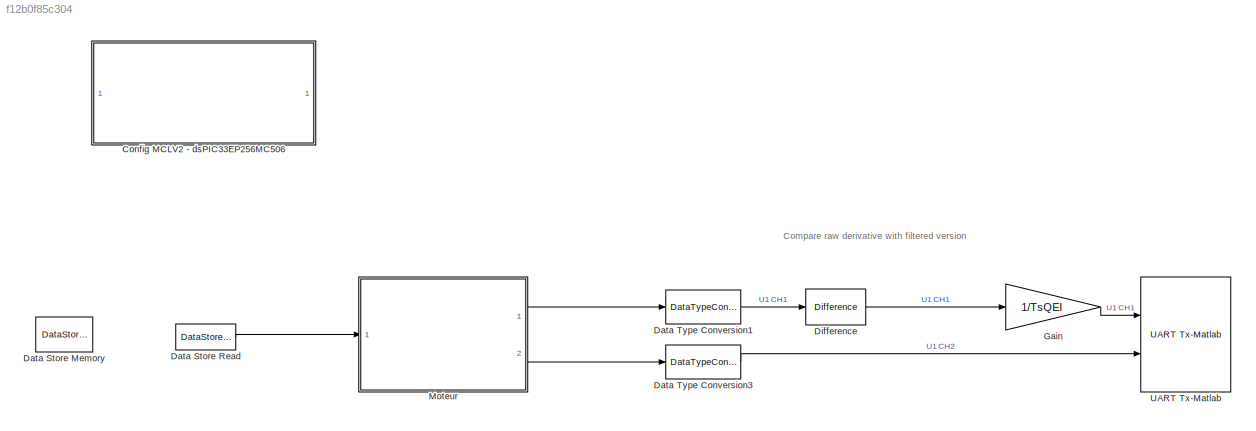
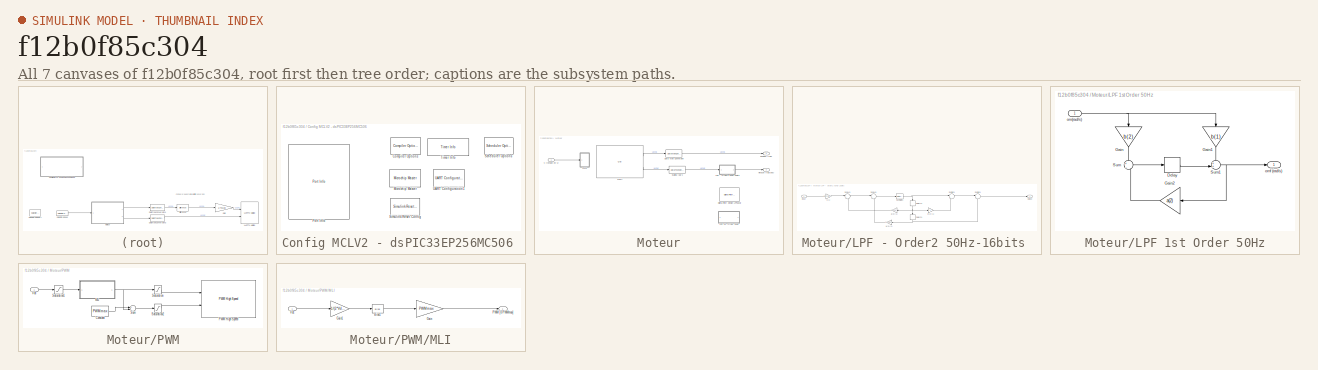
[diagram: thumbnail index - all 7 canvases of the model, root first then tree order]
MODEL slx_f12b0f85c304
KIND model
CONFIG AbsTol = auto
CONFIG EnableMultiTasking = on
CONFIG FixedStep = Ts
CONFIG MaxStep = auto
CONFIG MinStep = auto
CONFIG RelTol = 1e-3
CONFIG SampleTimeConstraint = Unconstrained
CONFIG Solver = FixedStepDiscrete
CONFIG SolverName = FixedStepDiscrete
CONFIG StartTime = 0.0
CONFIG StopTime = inf
BLOCK [SubSystem] Config MCLV2 - dsPIC33EP256MC506 
  Ports = []
  RequestExecContextInheritance = off
  Variant = off
BLOCK [Reference] Config MCLV2 - dsPIC33EP256MC506 /Compiler Options  REF=MCHP_Blockset/System Configuration/Compiler Options
  Ports = []
  Priority = 1
  SourceBlock = MCHP_Blockset/System Configuration/Compiler Options
  SourceProductName = MPLAB® Device Blocks for Simulink®
BLOCK [Reference] Config MCLV2 - dsPIC33EP256MC506 /Microchip Master  REF=MCHP_Blockset/System Configuration/Microchip Master
  Ports = []
  Priority = 1
  SourceBlock = MCHP_Blockset/System Configuration/Microchip Master
  SourceProductName = MPLAB® Device Blocks for Simulink®
BLOCK [Reference] Config MCLV2 - dsPIC33EP256MC506 /Port Info  REF=MCHP_Blockset/System Info/Port Info
  Ports = []
  SourceBlock = MCHP_Blockset/System Info/Port Info
  SourceProductName = MPLAB® Device Blocks for Simulink®
BLOCK [Reference] Config MCLV2 - dsPIC33EP256MC506 /Scheduler Options  REF=MCHP_Blockset/System Configuration/Scheduler Options
  Ports = []
  SourceBlock = MCHP_Blockset/System Configuration/Scheduler Options
  SourceProductName = MPLAB® Device Blocks for Simulink®
  SourceType = Scheduler Options
BLOCK [Reference] Config MCLV2 - dsPIC33EP256MC506 /Simulink Reset Config  REF=MCHP_Blockset/System Configuration/Simulink Reset
Config
  Ports = []
  SourceBlock = MCHP_Blockset/System Configuration/Simulink Reset\nConfig
  SourceProductName = MPLAB® Device Blocks for Simulink®
BLOCK [Reference] Config MCLV2 - dsPIC33EP256MC506 /Timer Info  REF=MCHP_Blockset/System Info/Timer Info
  Ports = []
  SourceBlock = MCHP_Blockset/System Info/Timer Info
  SourceProductName = MPLAB® Device Blocks for Simulink®
BLOCK [Reference] Config MCLV2 - dsPIC33EP256MC506 /UART Configuration1  REF=MCHP_Blockset/BUS UART/UART Configuration
  Ports = []
  SourceBlock = MCHP_Blockset/BUS UART/UART Configuration
  SourceProductName = MPLAB® Device Blocks for Simulink®
  SourceType = Configuration for UART peripheral
BLOCK [DataStoreMemory] Data Store Memory
  DataStoreName = V_Motor
  InitialValue = 5
  OutDataTypeStr = fixdt(1,16)
  OutMax = [Vdc]
  OutMin = [-Vdc]
  ReadBeforeWriteMsg = warning
  ShowAdditionalParam = off
  WriteAfterReadMsg = warning
  WriteAfterWriteMsg = warning
BLOCK [DataStoreRead] Data Store Read
  DataStoreName = V_Motor
  Ports = [0, 1]
  SampleTime = .01
BLOCK [DataTypeConversion] Data Type Conversion1
  OutDataTypeStr = single
  OutMax = [pi]
  OutMin = [0]
  RndMeth = Floor
  SaturateOnIntegerOverflow = off
BLOCK [DataTypeConversion] Data Type Conversion3
  OutDataTypeStr = single
  OutMax = [pi]
  OutMin = [0]
  RndMeth = Floor
  SaturateOnIntegerOverflow = off
BLOCK [Reference] Difference  REF=simulink/Discrete/Difference
  Ports = [1, 1]
  SourceBlock = simulink/Discrete/Difference
  SourceProductBaseCode = SL
  SourceProductName = Simulink
  SourceType = Difference
BLOCK [Gain] Gain
  Gain = 1/TsQEI
  OutDataTypeStr = Inherit: Inherit via internal rule
  ParamDataTypeStr = Inherit: Inherit via internal rule
  SaturateOnIntegerOverflow = off
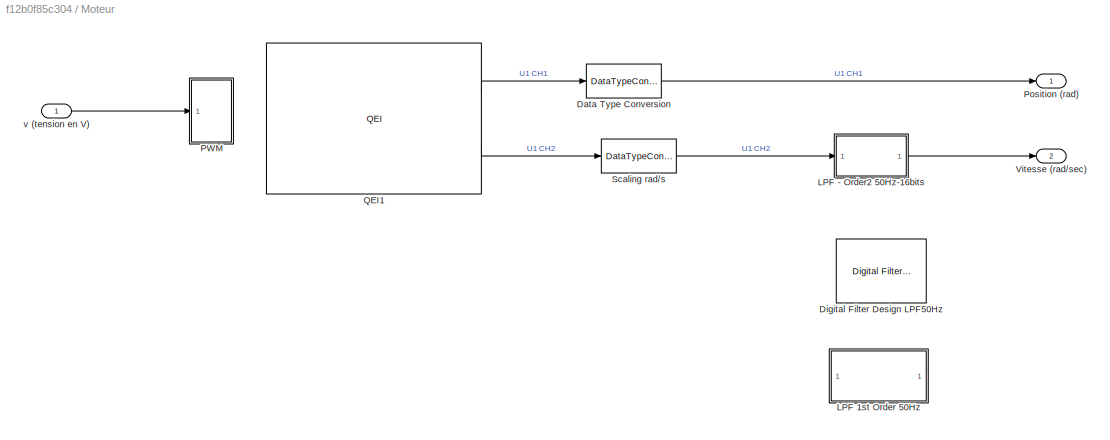
BLOCK [SubSystem] Moteur
  Ports = [1, 2]
  RequestExecContextInheritance = off
  Variant = off
BLOCK [DataTypeConversion] Moteur/Data Type Conversion
  ConvertRealWorld = Stored Integer (SI)
  OutDataTypeStr = fixdt(0,16,2*pi/Lignes,0)
  OutMax = [pi]
  OutMin = [0]
  RndMeth = Floor
  SaturateOnIntegerOverflow = off
BLOCK [Reference] Moteur/Digital Filter Design LPF50Hz  REF=dsparch4/Digital
Filter Design
  Commented = on
  Ports = [1, 1]
  SourceBlock = dsparch4/Digital\nFilter Design
  SourceProductBaseCode = DS
  SourceProductName = DSP System Toolbox
  SourceType = Digital Filter Design
  UserDataPersistent = on
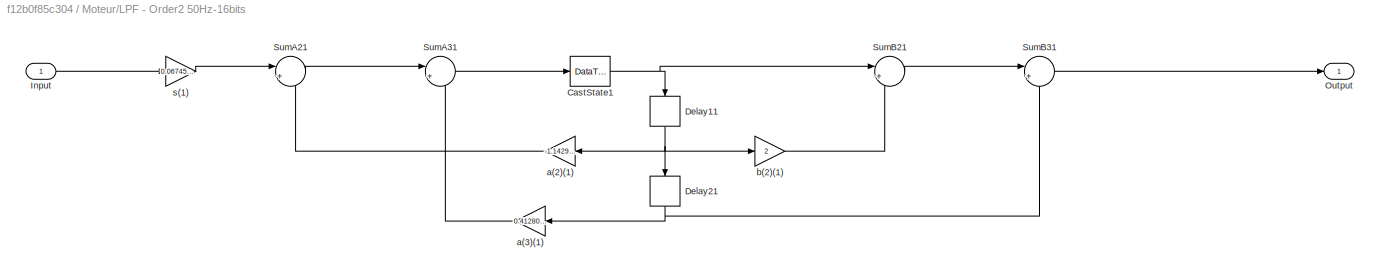
BLOCK [SubSystem] Moteur/LPF - Order2 50Hz-16bits 
  ErrorFcn = dspFilterRealizedInBasicElemsAlgLoopErrFcnCallback
  Ports = [1, 1]
  RequestExecContextInheritance = off
  Tag = FilterWizardSubSystem
  UserDataPersistent = on
  Variant = off
BLOCK [DataTypeConversion] Moteur/LPF - Order2 50Hz-16bits /CastState1
  OutDataTypeStr = fixdt(1,16,6)
  RndMeth = Floor
  SaturateOnIntegerOverflow = off
BLOCK [Delay] Moteur/LPF - Order2 50Hz-16bits /Delay11
  DelayLength = 1
  InitialCondition = 0
  InputPortMap = u0
  Ports = [1, 1]
BLOCK [Delay] Moteur/LPF - Order2 50Hz-16bits /Delay21
  DelayLength = 1
  InitialCondition = 0
  InputPortMap = u0
  Ports = [1, 1]
BLOCK [Inport] Moteur/LPF - Order2 50Hz-16bits /Input
  IconDisplay = Port number
  OutMax = [500]
  OutMin = [-500]
BLOCK [Outport] Moteur/LPF - Order2 50Hz-16bits /Output
  IconDisplay = Port number
BLOCK [Sum] Moteur/LPF - Order2 50Hz-16bits /SumA21
  AccumDataTypeStr = fixdt(1,16,6)
  IconShape = round
  InputSameDT = off
  Inputs = |+-
  OutDataTypeStr = fixdt(1,16,6)
  Ports = [2, 1]
  SaturateOnIntegerOverflow = off
BLOCK [Sum] Moteur/LPF - Order2 50Hz-16bits /SumA31
  AccumDataTypeStr = fixdt(1,16,6)
  IconShape = round
  InputSameDT = off
  Inputs = |+-
  OutDataTypeStr = fixdt(1,16,6)
  Ports = [2, 1]
  SaturateOnIntegerOverflow = off
BLOCK [Sum] Moteur/LPF - Order2 50Hz-16bits /SumB21
  AccumDataTypeStr = fixdt(1,16,5)
  IconShape = round
  InputSameDT = off
  Inputs = |++
  OutDataTypeStr = fixdt(1,16,5)
  Ports = [2, 1]
  SaturateOnIntegerOverflow = off
BLOCK [Sum] Moteur/LPF - Order2 50Hz-16bits /SumB31
  AccumDataTypeStr = fixdt(1,16,4)
  IconShape = round
  InputSameDT = off
  Inputs = |++
  OutDataTypeStr = fixdt(1,16,4)
  Ports = [2, 1]
  SaturateOnIntegerOverflow = off
BLOCK [Gain] Moteur/LPF - Order2 50Hz-16bits /a(2)(1)
  Gain = -1.14298050253990113
  OutDataTypeStr = fixdt(1,16,6)
  ParamDataTypeStr = fixdt(1,16,14)
  SaturateOnIntegerOverflow = off
BLOCK [Gain] Moteur/LPF - Order2 50Hz-16bits /a(3)(1)
  Gain = 0.412801598096188771
  OutDataTypeStr = fixdt(1,16,8)
  ParamDataTypeStr = fixdt(0,16,17)
  SaturateOnIntegerOverflow = off
BLOCK [Gain] Moteur/LPF - Order2 50Hz-16bits /b(2)(1)
  Gain = 2
  OutDataTypeStr = fixdt(1,16,5)
  ParamDataTypeStr = fixdt(0,16,14)
  SaturateOnIntegerOverflow = off
BLOCK [Gain] Moteur/LPF - Order2 50Hz-16bits /s(1)
  Gain = 0.0674552738890718956
  OutDataTypeStr = fixdt(1,16,8)
  ParamDataTypeStr = fixdt(0,16,19)
BLOCK [SubSystem] Moteur/LPF 1st Order 50Hz
  Commented = on
  Ports = [1, 1]
  RequestExecContextInheritance = off
  Variant = off
BLOCK [Delay] Moteur/LPF 1st Order 50Hz/Delay
  DelayLength = 1
  InitialCondition = 0
  InputPortMap = u0
  Ports = [1, 1]
  SampleTime = TsQEI
BLOCK [Gain] Moteur/LPF 1st Order 50Hz/Gain
  Gain = b(2)
  OutDataTypeStr = fixdt(1,16)
  OutMax = [b(2)*500]*4
  OutMin = [b(2)*-500]*4
  ParamDataTypeStr = Inherit: Inherit via internal rule
  SaturateOnIntegerOverflow = off
BLOCK [Gain] Moteur/LPF 1st Order 50Hz/Gain1
  Gain = b(1)
  OutDataTypeStr = fixdt(1,16)
  OutMax = [b(1)*500]*4
  OutMin = [b(1)*-500]*4
  ParamDataTypeStr = Inherit: Inherit via internal rule
  SaturateOnIntegerOverflow = off
BLOCK [Gain] Moteur/LPF 1st Order 50Hz/Gain2
  Gain = a(2)
  OutDataTypeStr = fixdt(1,16)
  OutMax = [-a(2)*500]*4
  OutMin = [-a(2)*-500]*4
  ParamDataTypeStr = Inherit: Inherit via internal rule
  SaturateOnIntegerOverflow = off
BLOCK [Sum] Moteur/LPF 1st Order 50Hz/Sum
  IconShape = round
  InputSameDT = off
  Inputs = +|-
  OutDataTypeStr = Inherit: Inherit via internal rule
  Ports = [2, 1]
BLOCK [Sum] Moteur/LPF 1st Order 50Hz/Sum1
  IconShape = round
  InputSameDT = off
  Inputs = ++|
  OutDataTypeStr = Inherit: Inherit via internal rule
  Ports = [2, 1]
BLOCK [Inport] Moteur/LPF 1st Order 50Hz/om(rad//s)
  IconDisplay = Port number
BLOCK [Outport] Moteur/LPF 1st Order 50Hz/omf (rad//s)
  IconDisplay = Port number
BLOCK [SubSystem] Moteur/PWM
  Ports = [1]
  RequestExecContextInheritance = off
  Variant = off
BLOCK [Constant] Moteur/PWM/Constant
  OutDataTypeStr = Inherit: Inherit via back propagation
  Value = PWMmax
BLOCK [SubSystem] Moteur/PWM/MLI
  Ports = [1, 1]
  RequestExecContextInheritance = off
  Variant = off
BLOCK [Bias] Moteur/PWM/MLI/Bias1
  Bias = 0.5
  SaturateOnIntegerOverflow = off
BLOCK [Gain] Moteur/PWM/MLI/Gain
  Gain = PWMmax
  OutDataTypeStr = uint16
  ParamDataTypeStr = Inherit: Inherit via internal rule
  SaturateOnIntegerOverflow = off
BLOCK [Gain] Moteur/PWM/MLI/Gain1
  Gain = 1/(2*Vdc)
  OutDataTypeStr = fixdt(1,16,14)
  ParamDataTypeStr = Inherit: Inherit via internal rule
  SaturateOnIntegerOverflow = off
BLOCK [Outport] Moteur/PWM/MLI/PWM [0 PWMmax]
  IconDisplay = Port number
BLOCK [Inport] Moteur/PWM/MLI/Vdc
  IconDisplay = Port number
BLOCK [Reference] Moteur/PWM/PWM High Speed  REF=MCHP_Blockset/PWM IO/PWM High Speed
  Ports = [2]
  SourceBlock = MCHP_Blockset/PWM IO/PWM High Speed
  SourceProductName = MPLAB® Device Blocks for Simulink®
  UserDataPersistent = on
BLOCK [Saturate] Moteur/PWM/Saturation
  InputPortMap = u0
  LowerLimit = round( (Tm/TPWM) *PWMmax )
  Ports = [1, 1]
  UpperLimit = PWMmax
BLOCK [Saturate] Moteur/PWM/Saturation1
  InputPortMap = u0
  LowerLimit = -Vdc
  Ports = [1, 1]
  UpperLimit = Vdc
BLOCK [Saturate] Moteur/PWM/Saturation2
  InputPortMap = u0
  LowerLimit = round( (Tm/TPWM) *PWMmax )
  Ports = [1, 1]
  UpperLimit = PWMmax
BLOCK [Sum] Moteur/PWM/Sum
  InputSameDT = off
  Inputs = +-
  OutDataTypeStr = Inherit: Inherit via internal rule
  Ports = [2, 1]
  SaturateOnIntegerOverflow = off
BLOCK [Inport] Moteur/PWM/Vdc
  IconDisplay = Port number
BLOCK [Outport] Moteur/Position (rad)
  IconDisplay = Port number
BLOCK [Reference] Moteur/QEI1  REF=MCHP_Blockset/QEI/QEI
  Ports = [0, 2]
  SourceBlock = MCHP_Blockset/QEI/QEI
  SourceProductName = MPLAB® Device Blocks for Simulink®
  SourceType = Output Driver for Quadrature Encoder Interface (QEI) peripheral
  UserDataPersistent = on
BLOCK [DataTypeConversion] Moteur/Scaling rad//s
  ConvertRealWorld = Stored Integer (SI)
  OutDataTypeStr = fixdt(1,16,2*pi/Lignes/TsQEI,0)
  OutMax = [pi]
  OutMin = [0]
  RndMeth = Floor
  SaturateOnIntegerOverflow = off
BLOCK [Outport] Moteur/Vitesse (rad//sec)
  IconDisplay = Port number
  Port = 2
BLOCK [Inport] Moteur/v (tension en V)
  IconDisplay = Port number
  OutDataTypeStr = fixdt(1,16)
  OutMax = [Vdc]
  OutMin = [-Vdc]
BLOCK [Reference] UART Tx-Matlab  REF=MCHP_Blockset/BUS UART/UART Tx-Matlab
  Ports = [2]
  SourceBlock = MCHP_Blockset/BUS UART/UART Tx-Matlab
  SourceProductName = MPLAB® Device Blocks for Simulink®
  SourceType = Higl Level UART protocol
ANNOTATION (root): Compare raw derivative with filtered version
LINE Data Store Read:1 -> Moteur:1
LINE Data Type Conversion1:1 -> Difference:1
LINE Data Type Conversion3:1 -> UART Tx-Matlab:2
LINE Difference:1 -> Gain:1
LINE Gain:1 -> UART Tx-Matlab:1
LINE Moteur/Data Type Conversion:1 -> Moteur/Position (rad):1
NET Moteur/LPF - Order2 50Hz-16bits /CastState1:1 -> Moteur/LPF - Order2 50Hz-16bits /Delay11:1, Moteur/LPF - Order2 50Hz-16bits /SumB21:1
NET Moteur/LPF - Order2 50Hz-16bits /Delay11:1 -> Moteur/LPF - Order2 50Hz-16bits /Delay21:1, Moteur/LPF - Order2 50Hz-16bits /a(2)(1):1, Moteur/LPF - Order2 50Hz-16bits /b(2)(1):1
NET Moteur/LPF - Order2 50Hz-16bits /Delay21:1 -> Moteur/LPF - Order2 50Hz-16bits /SumB31:2, Moteur/LPF - Order2 50Hz-16bits /a(3)(1):1
LINE Moteur/LPF - Order2 50Hz-16bits /Input:1 -> Moteur/LPF - Order2 50Hz-16bits /s(1):1
LINE Moteur/LPF - Order2 50Hz-16bits /SumA21:1 -> Moteur/LPF - Order2 50Hz-16bits /SumA31:1
LINE Moteur/LPF - Order2 50Hz-16bits /SumA31:1 -> Moteur/LPF - Order2 50Hz-16bits /CastState1:1
LINE Moteur/LPF - Order2 50Hz-16bits /SumB21:1 -> Moteur/LPF - Order2 50Hz-16bits /SumB31:1
LINE Moteur/LPF - Order2 50Hz-16bits /SumB31:1 -> Moteur/LPF - Order2 50Hz-16bits /Output:1
LINE Moteur/LPF - Order2 50Hz-16bits /a(2)(1):1 -> Moteur/LPF - Order2 50Hz-16bits /SumA21:2
LINE Moteur/LPF - Order2 50Hz-16bits /a(3)(1):1 -> Moteur/LPF - Order2 50Hz-16bits /SumA31:2
LINE Moteur/LPF - Order2 50Hz-16bits /b(2)(1):1 -> Moteur/LPF - Order2 50Hz-16bits /SumB21:2
LINE Moteur/LPF - Order2 50Hz-16bits /s(1):1 -> Moteur/LPF - Order2 50Hz-16bits /SumA21:1
LINE Moteur/LPF - Order2 50Hz-16bits :1 -> Moteur/Vitesse (rad//sec):1
LINE Moteur/LPF 1st Order 50Hz/Delay:1 -> Moteur/LPF 1st Order 50Hz/Sum1:2
LINE Moteur/LPF 1st Order 50Hz/Gain1:1 -> Moteur/LPF 1st Order 50Hz/Sum1:1
LINE Moteur/LPF 1st Order 50Hz/Gain2:1 -> Moteur/LPF 1st Order 50Hz/Sum:2
LINE Moteur/LPF 1st Order 50Hz/Gain:1 -> Moteur/LPF 1st Order 50Hz/Sum:1
NET Moteur/LPF 1st Order 50Hz/Sum1:1 -> Moteur/LPF 1st Order 50Hz/Gain2:1, Moteur/LPF 1st Order 50Hz/omf (rad//s):1
LINE Moteur/LPF 1st Order 50Hz/Sum:1 -> Moteur/LPF 1st Order 50Hz/Delay:1
NET Moteur/LPF 1st Order 50Hz/om(rad//s):1 -> Moteur/LPF 1st Order 50Hz/Gain1:1, Moteur/LPF 1st Order 50Hz/Gain:1
LINE Moteur/PWM/Constant:1 -> Moteur/PWM/Sum:1
LINE Moteur/PWM/MLI/Bias1:1 -> Moteur/PWM/MLI/Gain:1
LINE Moteur/PWM/MLI/Gain1:1 -> Moteur/PWM/MLI/Bias1:1
LINE Moteur/PWM/MLI/Gain:1 -> Moteur/PWM/MLI/PWM [0 PWMmax]:1
LINE Moteur/PWM/MLI/Vdc:1 -> Moteur/PWM/MLI/Gain1:1
NET Moteur/PWM/MLI:1 -> Moteur/PWM/Saturation:1, Moteur/PWM/Sum:2
LINE Moteur/PWM/Saturation1:1 -> Moteur/PWM/MLI:1
LINE Moteur/PWM/Saturation2:1 -> Moteur/PWM/PWM High Speed:2
LINE Moteur/PWM/Saturation:1 -> Moteur/PWM/PWM High Speed:1
LINE Moteur/PWM/Sum:1 -> Moteur/PWM/Saturation2:1
LINE Moteur/PWM/Vdc:1 -> Moteur/PWM/Saturation1:1
LINE Moteur/QEI1:1 -> Moteur/Data Type Conversion:1
LINE Moteur/QEI1:2 -> Moteur/Scaling rad//s:1
LINE Moteur/Scaling rad//s:1 -> Moteur/LPF - Order2 50Hz-16bits :1
LINE Moteur/v (tension en V):1 -> Moteur/PWM:1
LINE Moteur:1 -> Data Type Conversion1:1
LINE Moteur:2 -> Data Type Conversion3:1
note: NET lines group one-source signal fan-out (src -> all destinations, sorted); 1:1 wires keep LINE
